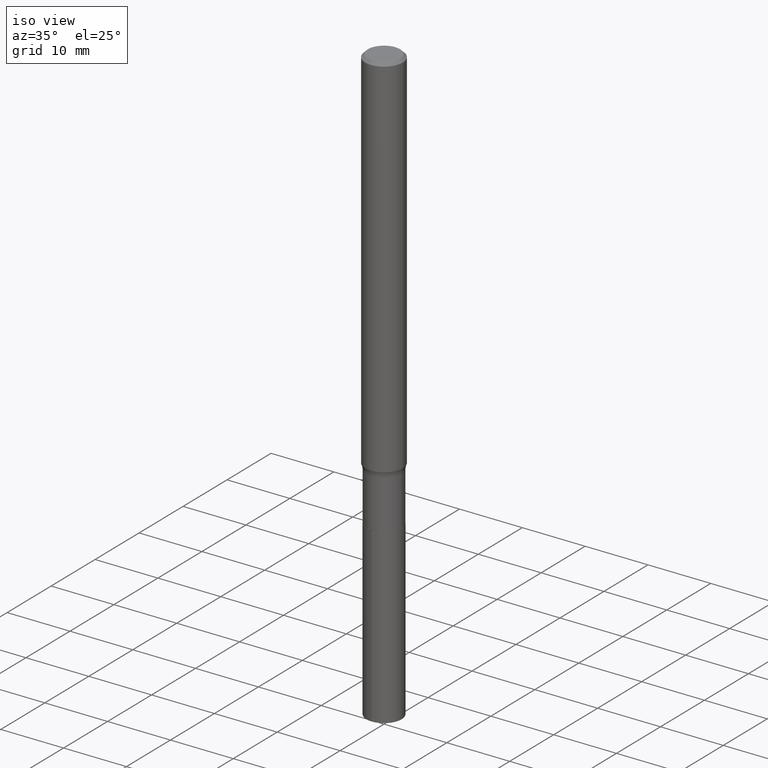
[diagram: clean part render]
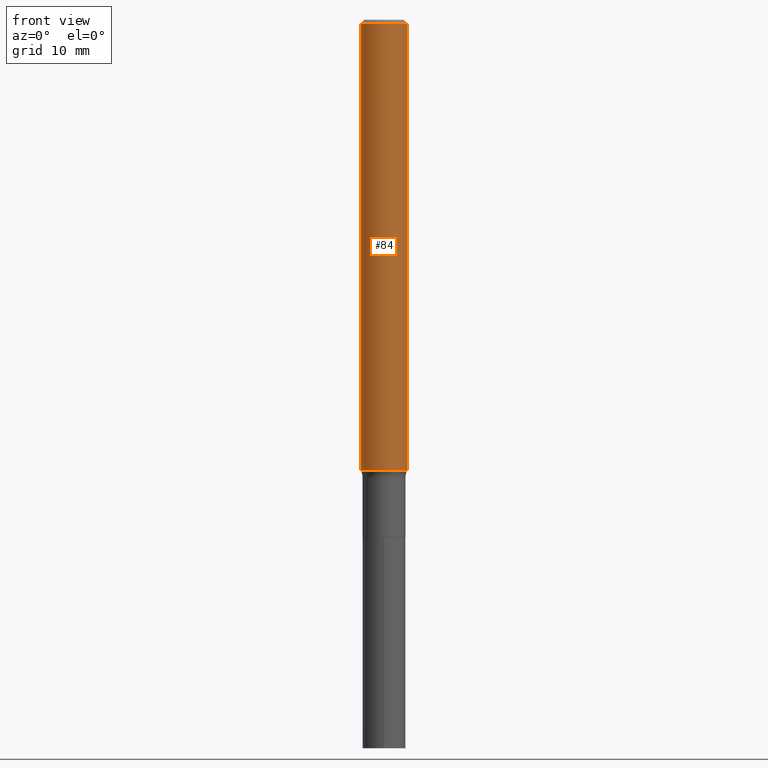
[diagram: tour spotlight — one face highlighted and labeled with its STEP entity id]
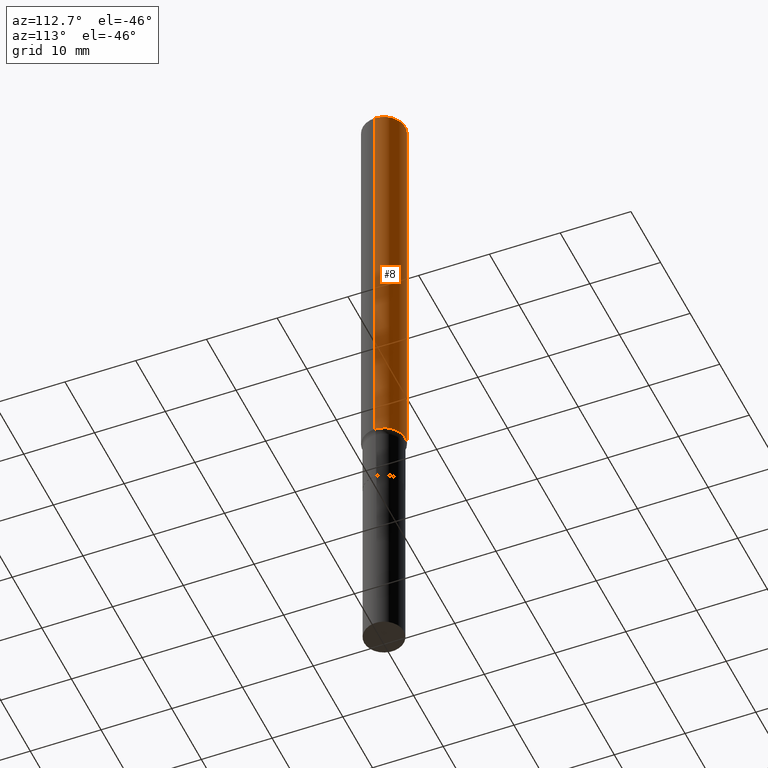
[diagram: tour spotlight — one face highlighted and labeled with its STEP entity id]
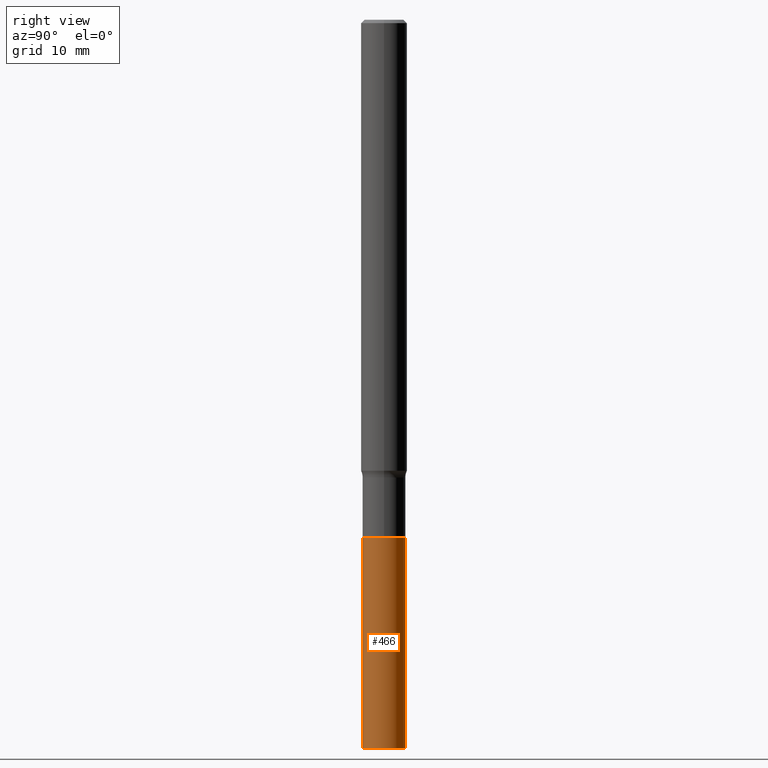
[diagram: tour spotlight — one face highlighted and labeled with its STEP entity id]
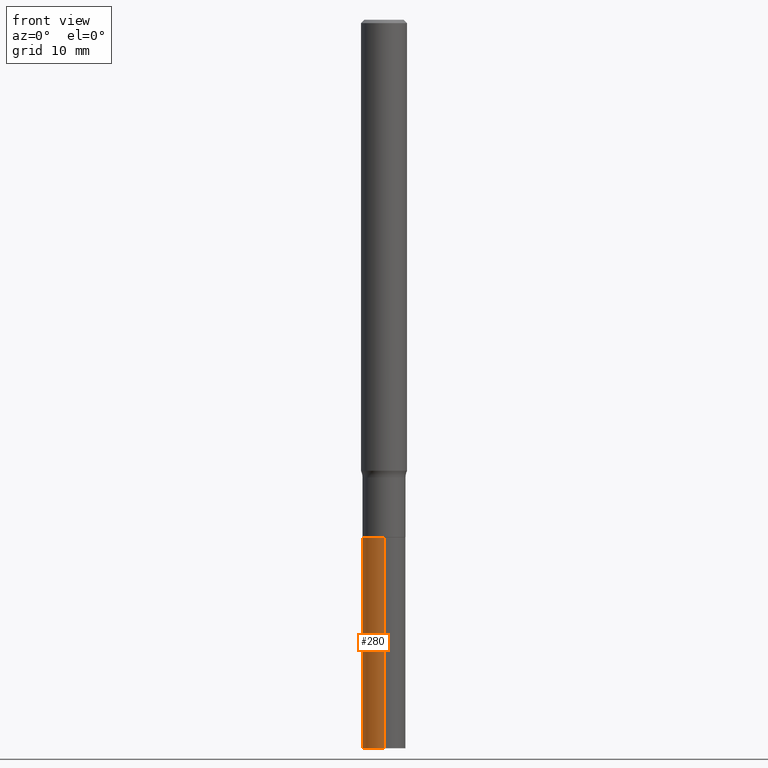
[diagram: tour spotlight — one face highlighted and labeled with its STEP entity id]
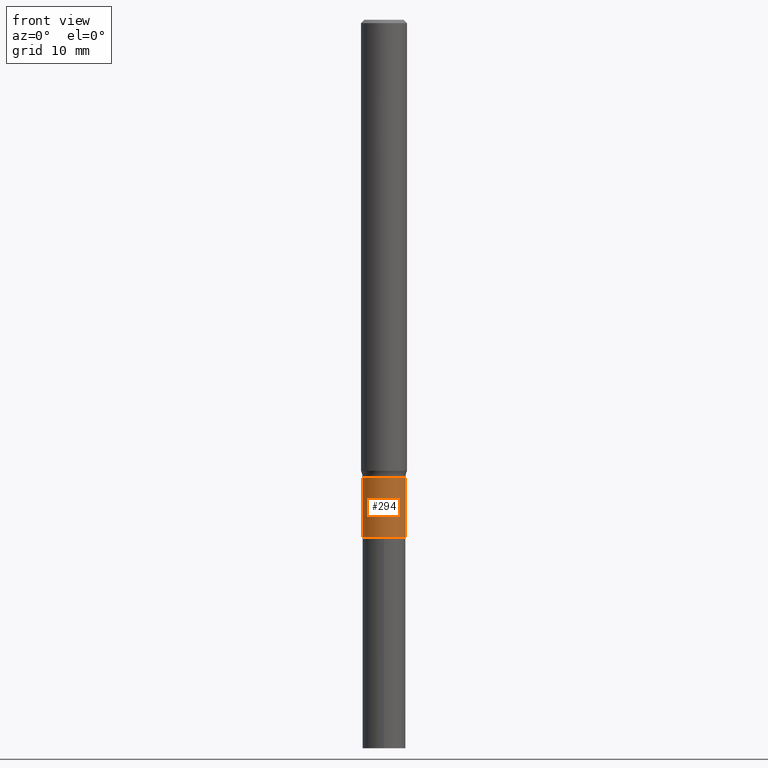
[diagram: tour spotlight — one face highlighted and labeled with its STEP entity id]
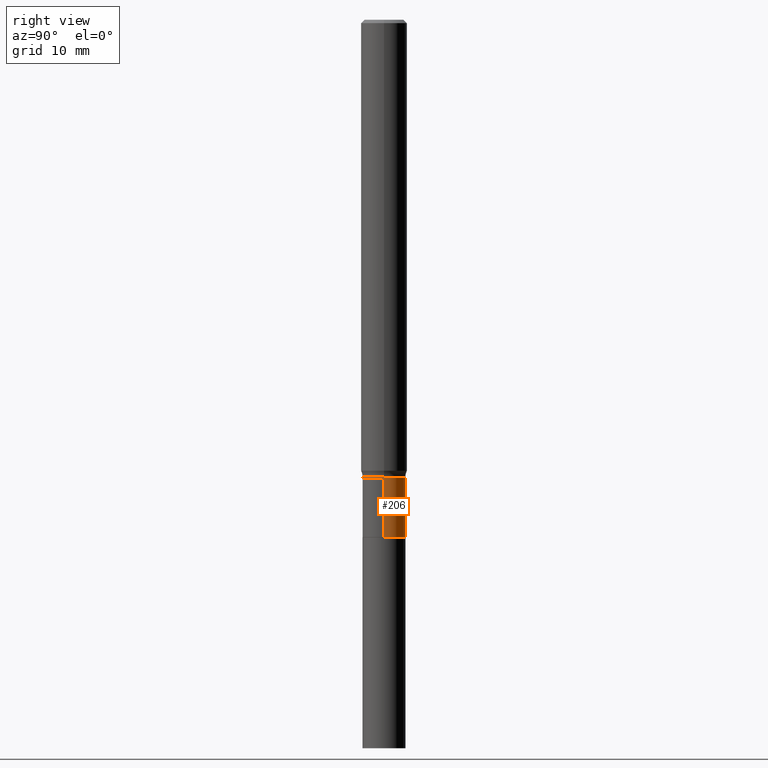
[diagram: tour spotlight — one face highlighted and labeled with its STEP entity id]
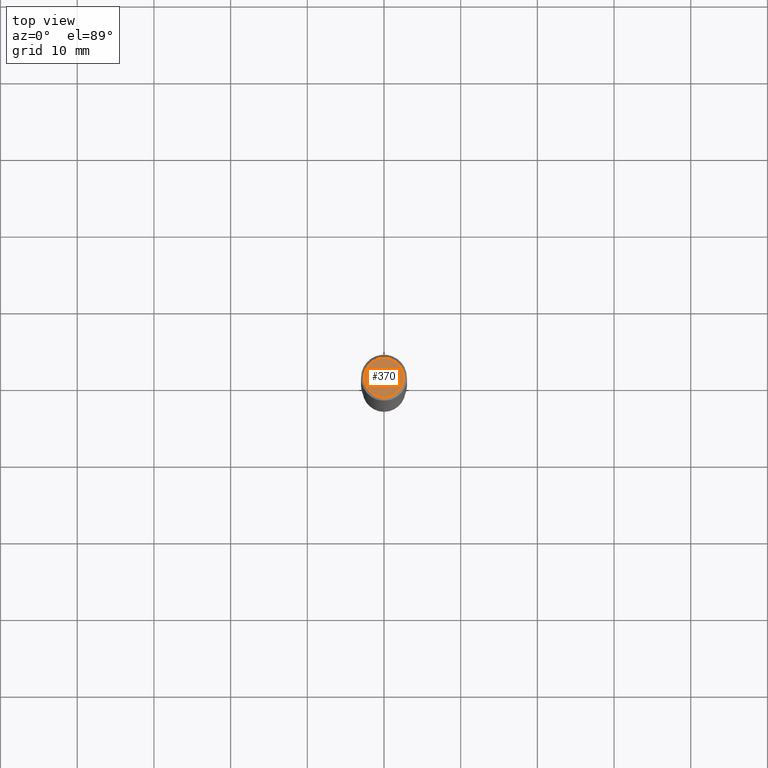
[diagram: tour spotlight — one face highlighted and labeled with its STEP entity id]
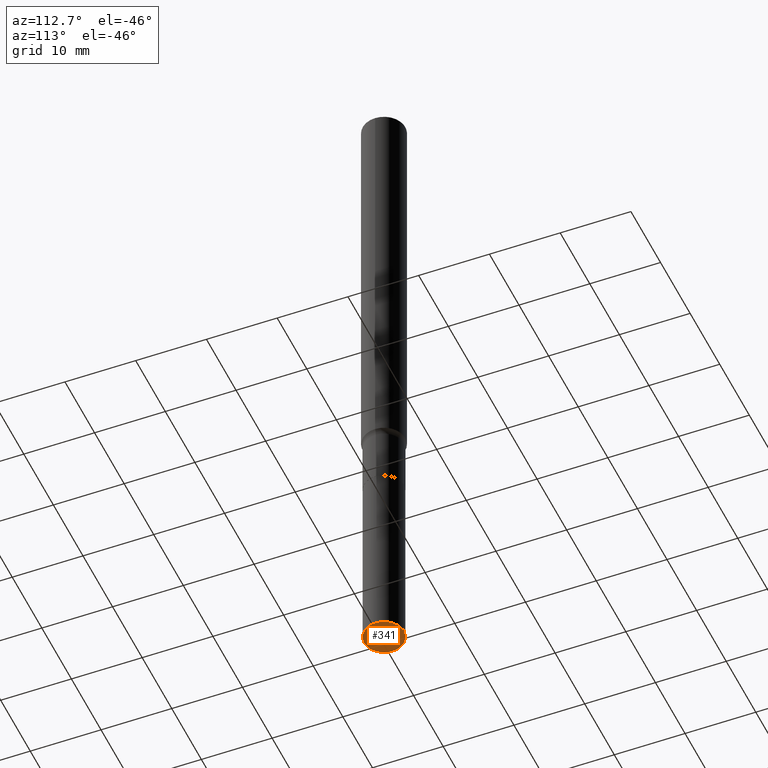
[diagram: tour spotlight — one face highlighted and labeled with its STEP entity id]
A machine part: a face-by-face anatomy tour. The part has 16 B-rep faces; the first image is the clean iso view, then the 8 largest visible faces are spotlighted one at a time (largest first), each with its STEP entity span.

Face 1 — front view, entity #84. In plain terms, the highlighted cylindrical surface (edge-blend (fillet) strip) has radius 2.9997 mm, axis along (-0, 0, 1).
Definition (entity closure, byte-faithful):
#16 = CARTESIAN_POINT ( 'NONE',  ( -0.1181000000000000105, -3.234107581332223613E-15, -0.01771500000000011954 ) ) ;
#19 = DIRECTION ( 'NONE',  ( -2.445468806185136597E-29, 3.491481338843145583E-15, 1.000000000000000000 ) ) ;
#22 = LINE ( 'NONE', #122, #207 ) ;
#29 = CARTESIAN_POINT ( 'NONE',  ( -0.1181000000000002742, -7.245514541679521591E-15, -2.315540232929025333 ) ) ;
#51 = CARTESIAN_POINT ( 'NONE',  ( 0.1181000000000000105, -8.865394841523550528E-16, -0.01771500000000011954 ) ) ;
#59 = DIRECTION ( 'NONE',  ( -2.445468806185136597E-29, 3.491481338843145583E-15, 1.000000000000000000 ) ) ;
#61 = AXIS2_PLACEMENT_3D ( 'NONE', #415, #59, #103 ) ;
#62 = CARTESIAN_POINT ( 'NONE',  ( 5.662581409094595686E-29, -8.084665512612202155E-15, -2.315540232929025333 ) ) ;
#69 = DIRECTION ( 'NONE',  ( 1.000000000000000000, -6.982962677686266711E-15, 4.876176775795936353E-29 ) ) ;
#77 = ORIENTED_EDGE ( 'NONE', *, *, #228, .F. ) ;
#83 = AXIS2_PLACEMENT_3D ( 'NONE', #374, #19, #69 ) ;
#84 = ADVANCED_FACE ( 'NONE', ( #299 ), #134, .T. ) ;
#101 = EDGE_CURVE ( 'NONE', #155, #289, #398, .T. ) ;
#103 = DIRECTION ( 'NONE',  ( 1.000000000000000000, -6.982962677686267499E-15, 0.000000000000000000 ) ) ;
#111 = ORIENTED_EDGE ( 'NONE', *, *, #136, .F. ) ;
#122 = CARTESIAN_POINT ( 'NONE',  ( -0.1181000000000001354, 8.391509709326792818E-16, -5.809262341591050090E-30 ) ) ;
#129 = LINE ( 'NONE', #226, #249 ) ;
#134 = CYLINDRICAL_SURFACE ( 'NONE', #83, 0.1181000000000001354 ) ;
#136 = EDGE_CURVE ( 'NONE', #334, #212, #256, .T. ) ;
#155 = VERTEX_POINT ( 'NONE', #29 ) ;
#187 = ORIENTED_EDGE ( 'NONE', *, *, #360, .T. ) ;
#207 = VECTOR ( 'NONE', #328, 39.37007874015748143 ) ;
#212 = VERTEX_POINT ( 'NONE', #51 ) ;
#226 = CARTESIAN_POINT ( 'NONE',  ( 0.1181000000000001354, -8.246878922347490515E-16, 5.758764772215007447E-30 ) ) ;
#228 = EDGE_CURVE ( 'NONE', #155, #334, #22, .T. ) ;
#249 = VECTOR ( 'NONE', #267, 39.37007874015748143 ) ;
#256 = CIRCLE ( 'NONE', #61, 0.1181000000000000105 ) ;
#267 = DIRECTION ( 'NONE',  ( -2.445468806185136877E-29, 3.491481338843145188E-15, 1.000000000000000000 ) ) ;
#289 = VERTEX_POINT ( 'NONE', #296 ) ;
#296 = CARTESIAN_POINT ( 'NONE',  ( 0.1181000000000002742, -8.909353404846951995E-15, -2.315540232929025333 ) ) ;
#299 = FACE_OUTER_BOUND ( 'NONE', #428, .T. ) ;
#328 = DIRECTION ( 'NONE',  ( -2.445468806185136877E-29, 3.491481338843145188E-15, 1.000000000000000000 ) ) ;
#333 = DIRECTION ( 'NONE',  ( 1.000000000000000000, -6.982962677686273021E-15, 0.000000000000000000 ) ) ;
#334 = VERTEX_POINT ( 'NONE', #16 ) ;
#346 = DIRECTION ( 'NONE',  ( -2.445468806185136597E-29, 3.491481338843145583E-15, 1.000000000000000000 ) ) ;
#360 = EDGE_CURVE ( 'NONE', #289, #212, #129, .T. ) ;
#374 = CARTESIAN_POINT ( 'NONE',  ( 0.000000000000000000, 0.000000000000000000, 0.000000000000000000 ) ) ;
#378 = AXIS2_PLACEMENT_3D ( 'NONE', #62, #346, #333 ) ;
#398 = CIRCLE ( 'NONE', #378, 0.1181000000000002742 ) ;
#415 = CARTESIAN_POINT ( 'NONE',  ( 4.332147990156999371E-31, -6.185159191760674092E-17, -0.01771500000000011954 ) ) ;
#419 = ORIENTED_EDGE ( 'NONE', *, *, #101, .T. ) ;
#428 = EDGE_LOOP ( 'NONE', ( #77, #419, #187, #111 ) ) ;

Face 2 — auxiliary view, entity #8. In plain terms, the highlighted cylindrical surface (edge-blend (fillet) strip) has radius 2.9997 mm, axis along (-0, 0, 1).
Definition (entity closure, byte-faithful):
#8 = ADVANCED_FACE ( 'NONE', ( #72 ), #286, .T. ) ;
#16 = CARTESIAN_POINT ( 'NONE',  ( -0.1181000000000000105, -3.234107581332223613E-15, -0.01771500000000011954 ) ) ;
#22 = LINE ( 'NONE', #122, #207 ) ;
#29 = CARTESIAN_POINT ( 'NONE',  ( -0.1181000000000002742, -7.245514541679521591E-15, -2.315540232929025333 ) ) ;
#38 = ORIENTED_EDGE ( 'NONE', *, *, #228, .T. ) ;
#51 = CARTESIAN_POINT ( 'NONE',  ( 0.1181000000000000105, -8.865394841523550528E-16, -0.01771500000000011954 ) ) ;
#72 = FACE_OUTER_BOUND ( 'NONE', #181, .T. ) ;
#108 = ORIENTED_EDGE ( 'NONE', *, *, #360, .F. ) ;
#110 = AXIS2_PLACEMENT_3D ( 'NONE', #208, #423, #250 ) ;
#122 = CARTESIAN_POINT ( 'NONE',  ( -0.1181000000000001354, 8.391509709326792818E-16, -5.809262341591050090E-30 ) ) ;
#129 = LINE ( 'NONE', #226, #249 ) ;
#151 = EDGE_CURVE ( 'NONE', #289, #155, #317, .T. ) ;
#155 = VERTEX_POINT ( 'NONE', #29 ) ;
#157 = AXIS2_PLACEMENT_3D ( 'NONE', #353, #172, #414 ) ;
#168 = ORIENTED_EDGE ( 'NONE', *, *, #440, .F. ) ;
#172 = DIRECTION ( 'NONE',  ( -2.445468806185136597E-29, 3.491481338843145583E-15, 1.000000000000000000 ) ) ;
#181 = EDGE_LOOP ( 'NONE', ( #241, #38, #168, #108 ) ) ;
#202 = DIRECTION ( 'NONE',  ( -2.445468806185136597E-29, 3.491481338843145583E-15, 1.000000000000000000 ) ) ;
#207 = VECTOR ( 'NONE', #328, 39.37007874015748143 ) ;
#208 = CARTESIAN_POINT ( 'NONE',  ( 0.000000000000000000, 0.000000000000000000, 0.000000000000000000 ) ) ;
#212 = VERTEX_POINT ( 'NONE', #51 ) ;
#225 = CIRCLE ( 'NONE', #157, 0.1181000000000000105 ) ;
#226 = CARTESIAN_POINT ( 'NONE',  ( 0.1181000000000001354, -8.246878922347490515E-16, 5.758764772215007447E-30 ) ) ;
#228 = EDGE_CURVE ( 'NONE', #155, #334, #22, .T. ) ;
#234 = CARTESIAN_POINT ( 'NONE',  ( 5.662581409094595686E-29, -8.084665512612202155E-15, -2.315540232929025333 ) ) ;
#241 = ORIENTED_EDGE ( 'NONE', *, *, #151, .T. ) ;
#249 = VECTOR ( 'NONE', #267, 39.37007874015748143 ) ;
#250 = DIRECTION ( 'NONE',  ( 1.000000000000000000, -6.982962677686266711E-15, 4.876176775795936353E-29 ) ) ;
#267 = DIRECTION ( 'NONE',  ( -2.445468806185136877E-29, 3.491481338843145188E-15, 1.000000000000000000 ) ) ;
#286 = CYLINDRICAL_SURFACE ( 'NONE', #110, 0.1181000000000001354 ) ;
#289 = VERTEX_POINT ( 'NONE', #296 ) ;
#296 = CARTESIAN_POINT ( 'NONE',  ( 0.1181000000000002742, -8.909353404846951995E-15, -2.315540232929025333 ) ) ;
#317 = CIRCLE ( 'NONE', #431, 0.1181000000000002742 ) ;
#328 = DIRECTION ( 'NONE',  ( -2.445468806185136877E-29, 3.491481338843145188E-15, 1.000000000000000000 ) ) ;
#334 = VERTEX_POINT ( 'NONE', #16 ) ;
#343 = DIRECTION ( 'NONE',  ( 1.000000000000000000, -6.982962677686273021E-15, 0.000000000000000000 ) ) ;
#353 = CARTESIAN_POINT ( 'NONE',  ( 4.332147990156999371E-31, -6.185159191760674092E-17, -0.01771500000000011954 ) ) ;
#360 = EDGE_CURVE ( 'NONE', #289, #212, #129, .T. ) ;
#414 = DIRECTION ( 'NONE',  ( 1.000000000000000000, -6.982962677686267499E-15, 0.000000000000000000 ) ) ;
#423 = DIRECTION ( 'NONE',  ( -2.445468806185136597E-29, 3.491481338843145583E-15, 1.000000000000000000 ) ) ;
#431 = AXIS2_PLACEMENT_3D ( 'NONE', #234, #202, #343 ) ;
#440 = EDGE_CURVE ( 'NONE', #212, #334, #225, .T. ) ;

Face 3 — right view, entity #466. In plain terms, the highlighted cylindrical surface (edge-blend (fillet) strip) has radius 2.8003 mm, axis along (-0, 0, 1).
Definition (entity closure, byte-faithful):
#5 = CARTESIAN_POINT ( 'NONE',  ( 9.139920139182118548E-29, -1.306832199932537301E-14, -3.740200000000000635 ) ) ;
#26 = LINE ( 'NONE', #239, #468 ) ;
#27 = ORIENTED_EDGE ( 'NONE', *, *, #350, .F. ) ;
#34 = CARTESIAN_POINT ( 'NONE',  ( 6.498099711795145856E-29, -9.277564213574007753E-15, -2.657200000000000450 ) ) ;
#73 = AXIS2_PLACEMENT_3D ( 'NONE', #34, #100, #169 ) ;
#91 = DIRECTION ( 'NONE',  ( -6.982962677686266711E-15, -1.000000000000000000, 4.955733321839933614E-15 ) ) ;
#93 = CIRCLE ( 'NONE', #139, 0.1102500000000000008 ) ;
#95 = DIRECTION ( 'NONE',  ( -2.439354041908560263E-29, 3.500238029317971584E-15, 1.000000000000000000 ) ) ;
#100 = DIRECTION ( 'NONE',  ( -2.439354041908560543E-29, 3.500238029317971584E-15, 1.000000000000000000 ) ) ;
#113 = CARTESIAN_POINT ( 'NONE',  ( -7.698716352148196691E-16, -0.1102500000000130875, -3.740200000000000191 ) ) ;
#119 = VERTEX_POINT ( 'NONE', #450 ) ;
#139 = AXIS2_PLACEMENT_3D ( 'NONE', #196, #404, #91 ) ;
#142 = ORIENTED_EDGE ( 'NONE', *, *, #444, .F. ) ;
#169 = DIRECTION ( 'NONE',  ( -6.982962677686266711E-15, -1.000000000000000000, 4.955733321839933614E-15 ) ) ;
#175 = DIRECTION ( 'NONE',  ( -2.439354041908560543E-29, 3.500238029317971584E-15, 1.000000000000000000 ) ) ;
#183 = ORIENTED_EDGE ( 'NONE', *, *, #377, .T. ) ;
#196 = CARTESIAN_POINT ( 'NONE',  ( 6.498099711795145856E-29, -9.277564213574007753E-15, -2.657200000000000450 ) ) ;
#203 = VERTEX_POINT ( 'NONE', #354 ) ;
#209 = DIRECTION ( 'NONE',  ( -2.439354041908560263E-29, 3.500238029317971584E-15, 1.000000000000000000 ) ) ;
#236 = CYLINDRICAL_SURFACE ( 'NONE', #73, 0.1102500000000000008 ) ;
#239 = CARTESIAN_POINT ( 'NONE',  ( -7.698716352148458988E-16, -0.1102500000000092711, -2.657199999999999562 ) ) ;
#243 = AXIS2_PLACEMENT_3D ( 'NONE', #5, #175, #424 ) ;
#258 = EDGE_CURVE ( 'NONE', #119, #203, #262, .T. ) ;
#262 = LINE ( 'NONE', #439, #276 ) ;
#276 = VECTOR ( 'NONE', #95, 39.37007874015748143 ) ;
#284 = CIRCLE ( 'NONE', #243, 0.1102500000000000285 ) ;
#322 = CARTESIAN_POINT ( 'NONE',  ( -7.698716352148458988E-16, -0.1102500000000092711, -2.657199999999999562 ) ) ;
#350 = EDGE_CURVE ( 'NONE', #375, #203, #93, .T. ) ;
#354 = CARTESIAN_POINT ( 'NONE',  ( 7.833733661756019683E-16, 0.1102499999999907165, -2.657200000000000895 ) ) ;
#375 = VERTEX_POINT ( 'NONE', #322 ) ;
#377 = EDGE_CURVE ( 'NONE', #382, #119, #284, .T. ) ;
#382 = VERTEX_POINT ( 'NONE', #113 ) ;
#404 = DIRECTION ( 'NONE',  ( -2.439354041908560543E-29, 3.500238029317971584E-15, 1.000000000000000000 ) ) ;
#424 = DIRECTION ( 'NONE',  ( -6.982962677686266711E-15, -1.000000000000000000, 4.955733321839932036E-15 ) ) ;
#430 = ORIENTED_EDGE ( 'NONE', *, *, #258, .T. ) ;
#439 = CARTESIAN_POINT ( 'NONE',  ( 7.833733661755754429E-16, 0.1102499999999907304, -2.657200000000000895 ) ) ;
#444 = EDGE_CURVE ( 'NONE', #382, #375, #26, .T. ) ;
#450 = CARTESIAN_POINT ( 'NONE',  ( 7.833733661755886563E-16, 0.1102499999999869557, -3.740200000000001079 ) ) ;
#451 = EDGE_LOOP ( 'NONE', ( #183, #430, #27, #142 ) ) ;
#460 = FACE_OUTER_BOUND ( 'NONE', #451, .T. ) ;
#466 = ADVANCED_FACE ( 'NONE', ( #460 ), #236, .T. ) ;
#468 = VECTOR ( 'NONE', #209, 39.37007874015748143 ) ;

Face 4 — front view, entity #280. In plain terms, the highlighted cylindrical surface (edge-blend (fillet) strip) has radius 2.8003 mm, axis along (-0, 0, 1).
Definition (entity closure, byte-faithful):
#7 = CIRCLE ( 'NONE', #304, 0.1102500000000000008 ) ;
#17 = CYLINDRICAL_SURFACE ( 'NONE', #365, 0.1102500000000000008 ) ;
#26 = LINE ( 'NONE', #239, #468 ) ;
#33 = ORIENTED_EDGE ( 'NONE', *, *, #427, .T. ) ;
#56 = CARTESIAN_POINT ( 'NONE',  ( 6.498099711795145856E-29, -9.277564213574007753E-15, -2.657200000000000450 ) ) ;
#85 = AXIS2_PLACEMENT_3D ( 'NONE', #143, #273, #345 ) ;
#95 = DIRECTION ( 'NONE',  ( -2.439354041908560263E-29, 3.500238029317971584E-15, 1.000000000000000000 ) ) ;
#113 = CARTESIAN_POINT ( 'NONE',  ( -7.698716352148196691E-16, -0.1102500000000130875, -3.740200000000000191 ) ) ;
#119 = VERTEX_POINT ( 'NONE', #450 ) ;
#126 = DIRECTION ( 'NONE',  ( -2.439354041908560543E-29, 3.500238029317971584E-15, 1.000000000000000000 ) ) ;
#143 = CARTESIAN_POINT ( 'NONE',  ( 9.139920139182118548E-29, -1.306832199932537301E-14, -3.740200000000000635 ) ) ;
#160 = DIRECTION ( 'NONE',  ( -2.439354041908560543E-29, 3.500238029317971584E-15, 1.000000000000000000 ) ) ;
#163 = DIRECTION ( 'NONE',  ( -6.982962677686266711E-15, -1.000000000000000000, 4.955733321839933614E-15 ) ) ;
#203 = VERTEX_POINT ( 'NONE', #354 ) ;
#209 = DIRECTION ( 'NONE',  ( -2.439354041908560263E-29, 3.500238029317971584E-15, 1.000000000000000000 ) ) ;
#221 = FACE_OUTER_BOUND ( 'NONE', #359, .T. ) ;
#233 = CIRCLE ( 'NONE', #85, 0.1102500000000000285 ) ;
#239 = CARTESIAN_POINT ( 'NONE',  ( -7.698716352148458988E-16, -0.1102500000000092711, -2.657199999999999562 ) ) ;
#258 = EDGE_CURVE ( 'NONE', #119, #203, #262, .T. ) ;
#262 = LINE ( 'NONE', #439, #276 ) ;
#273 = DIRECTION ( 'NONE',  ( -2.439354041908560543E-29, 3.500238029317971584E-15, 1.000000000000000000 ) ) ;
#276 = VECTOR ( 'NONE', #95, 39.37007874015748143 ) ;
#280 = ADVANCED_FACE ( 'NONE', ( #221 ), #17, .T. ) ;
#290 = DIRECTION ( 'NONE',  ( -6.982962677686266711E-15, -1.000000000000000000, 4.955733321839933614E-15 ) ) ;
#304 = AXIS2_PLACEMENT_3D ( 'NONE', #56, #126, #163 ) ;
#322 = CARTESIAN_POINT ( 'NONE',  ( -7.698716352148458988E-16, -0.1102500000000092711, -2.657199999999999562 ) ) ;
#338 = EDGE_CURVE ( 'NONE', #203, #375, #7, .T. ) ;
#345 = DIRECTION ( 'NONE',  ( -6.982962677686266711E-15, -1.000000000000000000, 4.955733321839932036E-15 ) ) ;
#354 = CARTESIAN_POINT ( 'NONE',  ( 7.833733661756019683E-16, 0.1102499999999907165, -2.657200000000000895 ) ) ;
#359 = EDGE_LOOP ( 'NONE', ( #372, #33, #393, #409 ) ) ;
#365 = AXIS2_PLACEMENT_3D ( 'NONE', #366, #160, #290 ) ;
#366 = CARTESIAN_POINT ( 'NONE',  ( 6.498099711795145856E-29, -9.277564213574007753E-15, -2.657200000000000450 ) ) ;
#372 = ORIENTED_EDGE ( 'NONE', *, *, #258, .F. ) ;
#375 = VERTEX_POINT ( 'NONE', #322 ) ;
#382 = VERTEX_POINT ( 'NONE', #113 ) ;
#393 = ORIENTED_EDGE ( 'NONE', *, *, #444, .T. ) ;
#409 = ORIENTED_EDGE ( 'NONE', *, *, #338, .F. ) ;
#427 = EDGE_CURVE ( 'NONE', #119, #382, #233, .T. ) ;
#439 = CARTESIAN_POINT ( 'NONE',  ( 7.833733661755754429E-16, 0.1102499999999907304, -2.657200000000000895 ) ) ;
#444 = EDGE_CURVE ( 'NONE', #382, #375, #26, .T. ) ;
#450 = CARTESIAN_POINT ( 'NONE',  ( 7.833733661755886563E-16, 0.1102499999999869557, -3.740200000000001079 ) ) ;
#468 = VECTOR ( 'NONE', #209, 39.37007874015748143 ) ;

Face 5 — front view, entity #294. In plain terms, the highlighted cylindrical surface (edge-blend (fillet) strip) has radius 2.8003 mm, axis along (-0, 0, 1).
Definition (entity closure, byte-faithful):
#12 = EDGE_CURVE ( 'NONE', #459, #21, #337, .T. ) ;
#13 = DIRECTION ( 'NONE',  ( -2.445468806185136877E-29, 3.491481338843145188E-15, 1.000000000000000000 ) ) ;
#21 = VERTEX_POINT ( 'NONE', #148 ) ;
#74 = DIRECTION ( 'NONE',  ( 1.000000000000000000, -6.982962677686270655E-15, 0.000000000000000000 ) ) ;
#76 = EDGE_LOOP ( 'NONE', ( #171, #117, #389, #144 ) ) ;
#78 = VERTEX_POINT ( 'NONE', #441 ) ;
#112 = CIRCLE ( 'NONE', #159, 0.1102499999999999730 ) ;
#114 = CARTESIAN_POINT ( 'NONE',  ( 0.1102499999999999869, -7.698716352149107826E-16, 5.375984895315018903E-30 ) ) ;
#117 = ORIENTED_EDGE ( 'NONE', *, *, #12, .T. ) ;
#124 = DIRECTION ( 'NONE',  ( -2.445468806185136597E-29, 3.491481338843145583E-15, 1.000000000000000000 ) ) ;
#144 = ORIENTED_EDGE ( 'NONE', *, *, #188, .F. ) ;
#148 = CARTESIAN_POINT ( 'NONE',  ( 0.1102500000000000008, -1.004569010811949614E-14, -2.656700000000000284 ) ) ;
#152 = CARTESIAN_POINT ( 'NONE',  ( 5.747096241415690460E-29, -8.205330294415276873E-15, -2.350100000000000300 ) ) ;
#159 = AXIS2_PLACEMENT_3D ( 'NONE', #152, #422, #74 ) ;
#171 = ORIENTED_EDGE ( 'NONE', *, *, #217, .F. ) ;
#180 = LINE ( 'NONE', #114, #292 ) ;
#188 = EDGE_CURVE ( 'NONE', #78, #344, #112, .T. ) ;
#189 = VECTOR ( 'NONE', #13, 39.37007874015748143 ) ;
#190 = DIRECTION ( 'NONE',  ( -2.445468806185136877E-29, 3.491481338843145188E-15, 1.000000000000000000 ) ) ;
#211 = EDGE_CURVE ( 'NONE', #21, #344, #180, .T. ) ;
#217 = EDGE_CURVE ( 'NONE', #459, #78, #252, .T. ) ;
#218 = AXIS2_PLACEMENT_3D ( 'NONE', #361, #247, #313 ) ;
#247 = DIRECTION ( 'NONE',  ( -2.445468806185136597E-29, 3.491481338843145583E-15, 1.000000000000000000 ) ) ;
#252 = LINE ( 'NONE', #442, #189 ) ;
#260 = DIRECTION ( 'NONE',  ( 1.000000000000000000, -6.982962677686266711E-15, 4.876176775795936353E-29 ) ) ;
#283 = CARTESIAN_POINT ( 'NONE',  ( -0.1102500000000000008, -7.957201017484421002E-15, -2.656700000000000284 ) ) ;
#292 = VECTOR ( 'NONE', #190, 39.37007874015748143 ) ;
#294 = ADVANCED_FACE ( 'NONE', ( #447 ), #443, .T. ) ;
#298 = CARTESIAN_POINT ( 'NONE',  ( 0.1102499999999999730, -8.975201929630187557E-15, -2.350100000000000300 ) ) ;
#313 = DIRECTION ( 'NONE',  ( 1.000000000000000000, -6.982962677686269077E-15, 0.000000000000000000 ) ) ;
#337 = CIRCLE ( 'NONE', #218, 0.1102500000000000008 ) ;
#344 = VERTEX_POINT ( 'NONE', #298 ) ;
#361 = CARTESIAN_POINT ( 'NONE',  ( 6.496876977392053055E-29, -9.275818472904585460E-15, -2.656700000000000284 ) ) ;
#389 = ORIENTED_EDGE ( 'NONE', *, *, #211, .T. ) ;
#407 = CARTESIAN_POINT ( 'NONE',  ( 0.000000000000000000, 0.000000000000000000, 0.000000000000000000 ) ) ;
#417 = AXIS2_PLACEMENT_3D ( 'NONE', #407, #124, #260 ) ;
#422 = DIRECTION ( 'NONE',  ( -2.445468806185136597E-29, 3.491481338843145583E-15, 1.000000000000000000 ) ) ;
#441 = CARTESIAN_POINT ( 'NONE',  ( -0.1102499999999999730, -7.957201017484421002E-15, -2.350100000000000300 ) ) ;
#442 = CARTESIAN_POINT ( 'NONE',  ( -0.1102499999999999869, 7.833733661755103618E-16, -5.423125937006033469E-30 ) ) ;
#443 = CYLINDRICAL_SURFACE ( 'NONE', #417, 0.1102499999999999869 ) ;
#447 = FACE_OUTER_BOUND ( 'NONE', #76, .T. ) ;
#459 = VERTEX_POINT ( 'NONE', #283 ) ;

Face 6 — right view, entity #206. In plain terms, the highlighted cylindrical surface (edge-blend (fillet) strip) has radius 2.8003 mm, axis along (-0, 0, 1).
Definition (entity closure, byte-faithful):
#1 = CARTESIAN_POINT ( 'NONE',  ( 0.000000000000000000, 0.000000000000000000, 0.000000000000000000 ) ) ;
#13 = DIRECTION ( 'NONE',  ( -2.445468806185136877E-29, 3.491481338843145188E-15, 1.000000000000000000 ) ) ;
#21 = VERTEX_POINT ( 'NONE', #148 ) ;
#37 = DIRECTION ( 'NONE',  ( -2.445468806185136597E-29, 3.491481338843145583E-15, 1.000000000000000000 ) ) ;
#48 = AXIS2_PLACEMENT_3D ( 'NONE', #137, #65, #342 ) ;
#65 = DIRECTION ( 'NONE',  ( -2.445468806185136597E-29, 3.491481338843145583E-15, 1.000000000000000000 ) ) ;
#67 = ORIENTED_EDGE ( 'NONE', *, *, #211, .F. ) ;
#78 = VERTEX_POINT ( 'NONE', #441 ) ;
#80 = ORIENTED_EDGE ( 'NONE', *, *, #217, .T. ) ;
#114 = CARTESIAN_POINT ( 'NONE',  ( 0.1102499999999999869, -7.698716352149107826E-16, 5.375984895315018903E-30 ) ) ;
#118 = EDGE_CURVE ( 'NONE', #344, #78, #156, .T. ) ;
#131 = DIRECTION ( 'NONE',  ( 1.000000000000000000, -6.982962677686270655E-15, 0.000000000000000000 ) ) ;
#137 = CARTESIAN_POINT ( 'NONE',  ( 6.496876977392053055E-29, -9.275818472904585460E-15, -2.656700000000000284 ) ) ;
#146 = DIRECTION ( 'NONE',  ( 1.000000000000000000, -6.982962677686266711E-15, 4.876176775795936353E-29 ) ) ;
#148 = CARTESIAN_POINT ( 'NONE',  ( 0.1102500000000000008, -1.004569010811949614E-14, -2.656700000000000284 ) ) ;
#149 = AXIS2_PLACEMENT_3D ( 'NONE', #1, #37, #146 ) ;
#156 = CIRCLE ( 'NONE', #199, 0.1102499999999999730 ) ;
#167 = DIRECTION ( 'NONE',  ( -2.445468806185136597E-29, 3.491481338843145583E-15, 1.000000000000000000 ) ) ;
#180 = LINE ( 'NONE', #114, #292 ) ;
#189 = VECTOR ( 'NONE', #13, 39.37007874015748143 ) ;
#190 = DIRECTION ( 'NONE',  ( -2.445468806185136877E-29, 3.491481338843145188E-15, 1.000000000000000000 ) ) ;
#199 = AXIS2_PLACEMENT_3D ( 'NONE', #340, #167, #131 ) ;
#206 = ADVANCED_FACE ( 'NONE', ( #287 ), #429, .T. ) ;
#211 = EDGE_CURVE ( 'NONE', #21, #344, #180, .T. ) ;
#217 = EDGE_CURVE ( 'NONE', #459, #78, #252, .T. ) ;
#219 = CIRCLE ( 'NONE', #48, 0.1102500000000000008 ) ;
#245 = EDGE_LOOP ( 'NONE', ( #352, #80, #388, #67 ) ) ;
#252 = LINE ( 'NONE', #442, #189 ) ;
#283 = CARTESIAN_POINT ( 'NONE',  ( -0.1102500000000000008, -7.957201017484421002E-15, -2.656700000000000284 ) ) ;
#287 = FACE_OUTER_BOUND ( 'NONE', #245, .T. ) ;
#292 = VECTOR ( 'NONE', #190, 39.37007874015748143 ) ;
#298 = CARTESIAN_POINT ( 'NONE',  ( 0.1102499999999999730, -8.975201929630187557E-15, -2.350100000000000300 ) ) ;
#340 = CARTESIAN_POINT ( 'NONE',  ( 5.747096241415690460E-29, -8.205330294415276873E-15, -2.350100000000000300 ) ) ;
#342 = DIRECTION ( 'NONE',  ( 1.000000000000000000, -6.982962677686269077E-15, 0.000000000000000000 ) ) ;
#344 = VERTEX_POINT ( 'NONE', #298 ) ;
#352 = ORIENTED_EDGE ( 'NONE', *, *, #390, .T. ) ;
#388 = ORIENTED_EDGE ( 'NONE', *, *, #118, .F. ) ;
#390 = EDGE_CURVE ( 'NONE', #21, #459, #219, .T. ) ;
#429 = CYLINDRICAL_SURFACE ( 'NONE', #149, 0.1102499999999999869 ) ;
#441 = CARTESIAN_POINT ( 'NONE',  ( -0.1102499999999999730, -7.957201017484421002E-15, -2.350100000000000300 ) ) ;
#442 = CARTESIAN_POINT ( 'NONE',  ( -0.1102499999999999869, 7.833733661755103618E-16, -5.423125937006033469E-30 ) ) ;
#459 = VERTEX_POINT ( 'NONE', #283 ) ;

Face 7 — top view, entity #370. In plain terms, the highlighted planar face has unit normal (0, -0, -1).
Definition (entity closure, byte-faithful):
#44 = CARTESIAN_POINT ( 'NONE',  ( 3.507850874923593654E-46, -5.008281372579124849E-32, -1.434428795841294606E-17 ) ) ;
#50 = EDGE_CURVE ( 'NONE', #238, #106, #364, .T. ) ;
#58 = PLANE ( 'NONE',  #351 ) ;
#99 = ORIENTED_EDGE ( 'NONE', *, *, #325, .T. ) ;
#106 = VERTEX_POINT ( 'NONE', #303 ) ;
#173 = AXIS2_PLACEMENT_3D ( 'NONE', #285, #185, #320 ) ;
#185 = DIRECTION ( 'NONE',  ( -2.445468806185136597E-29, 3.491481338843145583E-15, 1.000000000000000000 ) ) ;
#186 = DIRECTION ( 'NONE',  ( -1.000000000000000000, 6.982962677686265922E-15, -4.876176775795935793E-29 ) ) ;
#193 = DIRECTION ( 'NONE',  ( 1.000000000000000000, -6.982962677686266711E-15, 4.875668750515085695E-29 ) ) ;
#227 = EDGE_LOOP ( 'NONE', ( #357, #99 ) ) ;
#229 = FACE_OUTER_BOUND ( 'NONE', #227, .T. ) ;
#238 = VERTEX_POINT ( 'NONE', #301 ) ;
#285 = CARTESIAN_POINT ( 'NONE',  ( 7.015701749847187307E-46, -1.001656274515824970E-31, -2.868857591682589212E-17 ) ) ;
#301 = CARTESIAN_POINT ( 'NONE',  ( -0.1003850000000000159, 7.319105043583386689E-16, -2.868857591683090262E-17 ) ) ;
#303 = CARTESIAN_POINT ( 'NONE',  ( 0.1003850000000000159, -7.803837484803601317E-16, -2.868857591682071522E-17 ) ) ;
#305 = DIRECTION ( 'NONE',  ( 2.438088387897960049E-29, -3.491481338843145188E-15, -1.000000000000000000 ) ) ;
#320 = DIRECTION ( 'NONE',  ( 1.000000000000000000, -6.982962677686266711E-15, 4.875668750515085695E-29 ) ) ;
#325 = EDGE_CURVE ( 'NONE', #106, #238, #425, .T. ) ;
#332 = CARTESIAN_POINT ( 'NONE',  ( 7.015701749847187307E-46, -1.001656274515824970E-31, -2.868857591682589212E-17 ) ) ;
#351 = AXIS2_PLACEMENT_3D ( 'NONE', #44, #305, #186 ) ;
#357 = ORIENTED_EDGE ( 'NONE', *, *, #50, .T. ) ;
#364 = CIRCLE ( 'NONE', #173, 0.1003850000000000159 ) ;
#370 = ADVANCED_FACE ( 'NONE', ( #229 ), #58, .F. ) ;
#399 = AXIS2_PLACEMENT_3D ( 'NONE', #332, #402, #193 ) ;
#402 = DIRECTION ( 'NONE',  ( -2.445468806185136597E-29, 3.491481338843145583E-15, 1.000000000000000000 ) ) ;
#425 = CIRCLE ( 'NONE', #399, 0.1003850000000000159 ) ;

Face 8 — auxiliary view, entity #341. In plain terms, the highlighted planar face has unit normal (-0, 0, 1).
Definition (entity closure, byte-faithful):
#5 = CARTESIAN_POINT ( 'NONE',  ( 9.139920139182118548E-29, -1.306832199932537301E-14, -3.740200000000000635 ) ) ;
#53 = CARTESIAN_POINT ( 'NONE',  ( -3.796681794411323926E-29, -3.159427227388685348E-14, -3.740200000000000635 ) ) ;
#57 = ORIENTED_EDGE ( 'NONE', *, *, #377, .F. ) ;
#85 = AXIS2_PLACEMENT_3D ( 'NONE', #143, #273, #345 ) ;
#89 = FACE_OUTER_BOUND ( 'NONE', #323, .T. ) ;
#113 = CARTESIAN_POINT ( 'NONE',  ( -7.698716352148196691E-16, -0.1102500000000130875, -3.740200000000000191 ) ) ;
#119 = VERTEX_POINT ( 'NONE', #450 ) ;
#143 = CARTESIAN_POINT ( 'NONE',  ( 9.139920139182118548E-29, -1.306832199932537301E-14, -3.740200000000000635 ) ) ;
#161 = DIRECTION ( 'NONE',  ( -6.982962677686265922E-15, -1.000000000000000000, 3.500238029317971584E-15 ) ) ;
#175 = DIRECTION ( 'NONE',  ( -2.439354041908560543E-29, 3.500238029317971584E-15, 1.000000000000000000 ) ) ;
#200 = AXIS2_PLACEMENT_3D ( 'NONE', #53, #230, #161 ) ;
#230 = DIRECTION ( 'NONE',  ( -2.439354041908560263E-29, 3.500238029317971584E-15, 1.000000000000000000 ) ) ;
#233 = CIRCLE ( 'NONE', #85, 0.1102500000000000285 ) ;
#243 = AXIS2_PLACEMENT_3D ( 'NONE', #5, #175, #424 ) ;
#273 = DIRECTION ( 'NONE',  ( -2.439354041908560543E-29, 3.500238029317971584E-15, 1.000000000000000000 ) ) ;
#284 = CIRCLE ( 'NONE', #243, 0.1102500000000000285 ) ;
#310 = ORIENTED_EDGE ( 'NONE', *, *, #427, .F. ) ;
#323 = EDGE_LOOP ( 'NONE', ( #57, #310 ) ) ;
#341 = ADVANCED_FACE ( 'NONE', ( #89 ), #367, .F. ) ;
#345 = DIRECTION ( 'NONE',  ( -6.982962677686266711E-15, -1.000000000000000000, 4.955733321839932036E-15 ) ) ;
#367 = PLANE ( 'NONE',  #200 ) ;
#377 = EDGE_CURVE ( 'NONE', #382, #119, #284, .T. ) ;
#382 = VERTEX_POINT ( 'NONE', #113 ) ;
#424 = DIRECTION ( 'NONE',  ( -6.982962677686266711E-15, -1.000000000000000000, 4.955733321839932036E-15 ) ) ;
#427 = EDGE_CURVE ( 'NONE', #119, #382, #233, .T. ) ;
#450 = CARTESIAN_POINT ( 'NONE',  ( 7.833733661755886563E-16, 0.1102499999999869557, -3.740200000000001079 ) ) ;